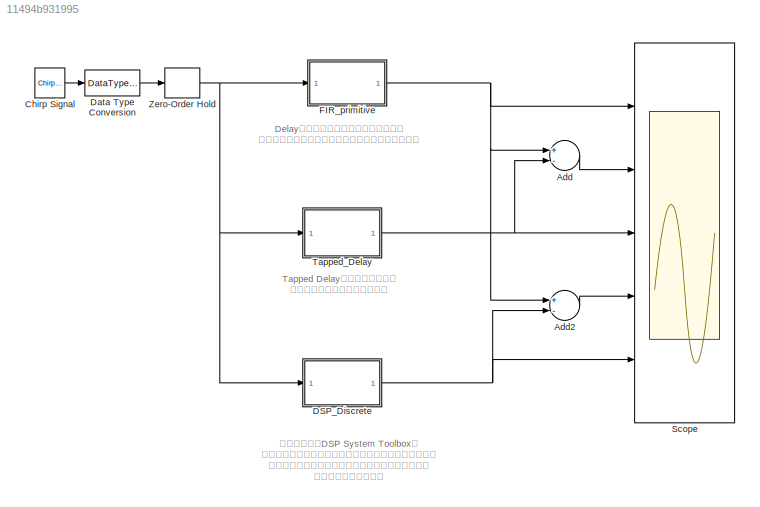
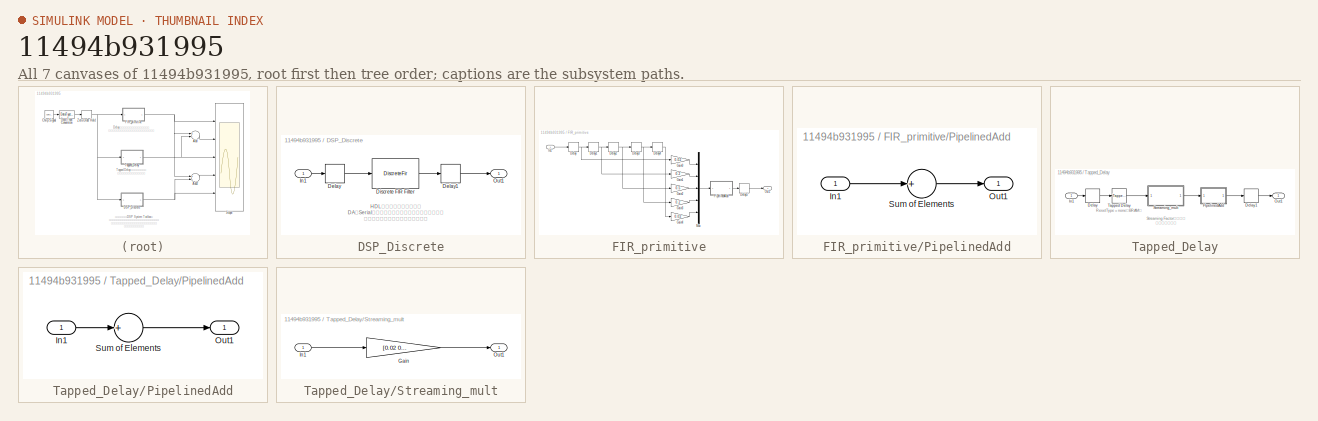
[diagram: thumbnail index - all 7 canvases of the model, root first then tree order]
MODEL slx_11494b931995
KIND model
CONFIG AbsTol = auto
CONFIG FixedStep = auto
CONFIG MaxStep = auto
CONFIG MinStep = auto
CONFIG RelTol = 1e-3
CONFIG SampleTimeConstraint = Unconstrained
CONFIG Solver = FixedStepDiscrete
CONFIG SolverMode = SingleTasking
CONFIG SolverName = FixedStepDiscrete
CONFIG StartTime = 0.0
CONFIG StopTime = 10.0
BLOCK [Sum] Add
  InputSameDT = off
  Inputs = +-
  OutDataTypeStr = Inherit: Inherit via internal rule
  Ports = [2, 1]
  SaturateOnIntegerOverflow = off
BLOCK [Sum] Add2
  InputSameDT = off
  Inputs = +-
  OutDataTypeStr = Inherit: Inherit via internal rule
  Ports = [2, 1]
  SaturateOnIntegerOverflow = off
BLOCK [Reference] Chirp Signal  REF=simulink/Sources/Chirp Signal
  Ports = [0, 1]
  SourceBlock = simulink/Sources/Chirp Signal
  SourceType = chirp
BLOCK [SubSystem] DSP_Discrete
  Ports = [1, 1]
  RequestExecContextInheritance = off
  Variant = off
BLOCK [Delay] DSP_Discrete/Delay
  DelayLength = 1
  InputPortMap = u0
  Ports = [1, 1]
BLOCK [Delay] DSP_Discrete/Delay1
  DelayLength = 1
  InputPortMap = u0
  Ports = [1, 1]
BLOCK [DiscreteFir] DSP_Discrete/Discrete FIR Filter
  AccumDataTypeStr = fixdt(1,19,14)
  Coefficients = [0.02 0.2 0.5 0.2 0.02]  %[0.2 0.3 0.5 0.3 0.2]  %コメント
  FilterStructure = Direct form symmetric
  InputPortMap = u0
  InputProcessing = Columns as channels (frame based)
  OutputPortMap = o0
  Ports = [1, 1]
  ProductDataTypeStr = Inherit: Same as input
  RndMeth = Nearest
BLOCK [Inport] DSP_Discrete/In1
  IconDisplay = Port number
BLOCK [Outport] DSP_Discrete/Out1
  IconDisplay = Port number
BLOCK [DataTypeConversion] Data Type Conversion
  OutDataTypeStr = fixdt(1,16,14)
  RndMeth = Nearest
  SaturateOnIntegerOverflow = off
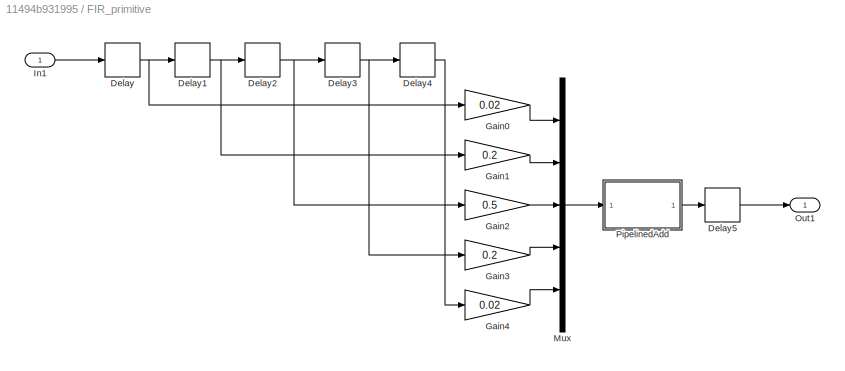
BLOCK [SubSystem] FIR_primitive
  Ports = [1, 1]
  RequestExecContextInheritance = off
  Variant = off
BLOCK [Delay] FIR_primitive/Delay
  DelayLength = 1
  InputPortMap = u0
  Ports = [1, 1]
BLOCK [Delay] FIR_primitive/Delay1
  DelayLength = 1
  InputPortMap = u0
  Ports = [1, 1]
BLOCK [Delay] FIR_primitive/Delay2
  DelayLength = 1
  InputPortMap = u0
  Ports = [1, 1]
BLOCK [Delay] FIR_primitive/Delay3
  DelayLength = 1
  InputPortMap = u0
  Ports = [1, 1]
BLOCK [Delay] FIR_primitive/Delay4
  DelayLength = 1
  InputPortMap = u0
  Ports = [1, 1]
BLOCK [Delay] FIR_primitive/Delay5
  DelayLength = 1
  InputPortMap = u0
  Ports = [1, 1]
BLOCK [Gain] FIR_primitive/Gain0
  Gain = 0.02
  RndMeth = Nearest
  SaturateOnIntegerOverflow = off
BLOCK [Gain] FIR_primitive/Gain1
  Gain = 0.2
  RndMeth = Nearest
  SaturateOnIntegerOverflow = off
BLOCK [Gain] FIR_primitive/Gain2
  Gain = 0.5
  RndMeth = Nearest
  SaturateOnIntegerOverflow = off
BLOCK [Gain] FIR_primitive/Gain3
  Gain = 0.2
  RndMeth = Nearest
  SaturateOnIntegerOverflow = off
BLOCK [Gain] FIR_primitive/Gain4
  Gain = 0.02
  RndMeth = Nearest
  SaturateOnIntegerOverflow = off
BLOCK [Inport] FIR_primitive/In1
  IconDisplay = Port number
BLOCK [Mux] FIR_primitive/Mux
  DisplayOption = bar
  Inputs = 5
  Ports = [5, 1]
BLOCK [Outport] FIR_primitive/Out1
  IconDisplay = Port number
BLOCK [SubSystem] FIR_primitive/PipelinedAdd
  Ports = [1, 1]
  RequestExecContextInheritance = off
  Variant = off
BLOCK [Inport] FIR_primitive/PipelinedAdd/In1
  IconDisplay = Port number
BLOCK [Outport] FIR_primitive/PipelinedAdd/Out1
  IconDisplay = Port number
BLOCK [Sum] FIR_primitive/PipelinedAdd/Sum of Elements
  InputSameDT = off
  Inputs = +
  OutDataTypeStr = Inherit: Inherit via internal rule
  Ports = [1, 1]
  RndMeth = Nearest
  SaturateOnIntegerOverflow = off
BLOCK [Scope] Scope
  NumInputPorts = 5
  Ports = [5]
  ScopeSpecificationString = Simulink.scopes.TimeScopeBlockCfg('CurrentConfiguration', extmgr.ConfigurationSet(extmgr.Configuration('Core','General UI',true),extmgr.Configuration('Core','Source UI',true),extmgr.Configuration('Sources','WiredSimulink',true,'DataLoggingSaveFormat','StructureWithTime','DataLoggingDecimation','1','DataLoggingDecimateData',true),extmgr.Configuration('Visuals','Time Domain',true,'SerializedDisplays...<+6417ch>
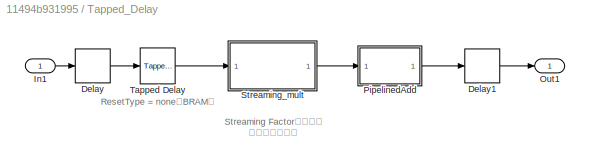
BLOCK [SubSystem] Tapped_Delay
  Ports = [1, 1]
  RequestExecContextInheritance = off
  Variant = off
BLOCK [Delay] Tapped_Delay/Delay
  DelayLength = 1
  InputPortMap = u0
  Ports = [1, 1]
BLOCK [Delay] Tapped_Delay/Delay1
  DelayLength = 1
  InputPortMap = u0
  Ports = [1, 1]
BLOCK [Inport] Tapped_Delay/In1
  IconDisplay = Port number
BLOCK [Outport] Tapped_Delay/Out1
  IconDisplay = Port number
BLOCK [SubSystem] Tapped_Delay/PipelinedAdd
  Ports = [1, 1]
  RequestExecContextInheritance = off
  Variant = off
BLOCK [Inport] Tapped_Delay/PipelinedAdd/In1
  IconDisplay = Port number
BLOCK [Outport] Tapped_Delay/PipelinedAdd/Out1
  IconDisplay = Port number
BLOCK [Sum] Tapped_Delay/PipelinedAdd/Sum of Elements
  InputSameDT = off
  Inputs = +
  OutDataTypeStr = Inherit: Inherit via internal rule
  Ports = [1, 1]
  RndMeth = Nearest
  SaturateOnIntegerOverflow = off
BLOCK [SubSystem] Tapped_Delay/Streaming_mult
  Ports = [1, 1]
  RequestExecContextInheritance = off
  Variant = off
BLOCK [Gain] Tapped_Delay/Streaming_mult/Gain
  Gain = [0.02 0.2 0.5 0.2 0.02]
  RndMeth = Nearest
  SaturateOnIntegerOverflow = off
BLOCK [Inport] Tapped_Delay/Streaming_mult/In1
  IconDisplay = Port number
BLOCK [Outport] Tapped_Delay/Streaming_mult/Out1
  IconDisplay = Port number
BLOCK [Reference] Tapped_Delay/Tapped Delay  REF=simulink/Discrete/Tapped Delay
  Ports = [1, 1]
  SourceBlock = simulink/Discrete/Tapped Delay
  SourceType = Tapped Delay Line
BLOCK [ZeroOrderHold] Zero-Order Hold
  SampleTime = 1/1000
ANNOTATION (root): Delayブロックと乗算、加算器といった プリミティブなブロックを使って構成しています。
ANNOTATION (root): Tapped Delayを使用することで 若干抽象度を高く記述できる。
ANNOTATION (root): 抽象度の高いDSP System Toolboxの フィルタブロックを使用するとモデリングが容易になり 構造の変更（対称、非対称）もパラメータで簡単に 行うことが可能です。
ANNOTATION DSP_Discrete: HDLブロックプロパティで DAやSerial化などのアーキテクチャを選択できる。 必要なパラメータのみ表示される。
ANNOTATION Tapped_Delay: ResetType = noneでBRAM化
ANNOTATION Tapped_Delay: Streaming Factorによって 乗算器を共有化
LINE Add2:1 -> Scope:4
LINE Add:1 -> Scope:2
LINE Chirp Signal:1 -> Data Type Conversion:1
LINE DSP_Discrete/Delay1:1 -> DSP_Discrete/Out1:1
LINE DSP_Discrete/Delay:1 -> DSP_Discrete/Discrete FIR Filter:1
LINE DSP_Discrete/Discrete FIR Filter:1 -> DSP_Discrete/Delay1:1
LINE DSP_Discrete/In1:1 -> DSP_Discrete/Delay:1
NET DSP_Discrete:1 -> Add2:2, Scope:5
LINE Data Type Conversion:1 -> Zero-Order Hold:1
NET FIR_primitive/Delay1:1 -> FIR_primitive/Delay2:1, FIR_primitive/Gain1:1
NET FIR_primitive/Delay2:1 -> FIR_primitive/Delay3:1, FIR_primitive/Gain2:1
NET FIR_primitive/Delay3:1 -> FIR_primitive/Delay4:1, FIR_primitive/Gain3:1
LINE FIR_primitive/Delay4:1 -> FIR_primitive/Gain4:1
LINE FIR_primitive/Delay5:1 -> FIR_primitive/Out1:1
NET FIR_primitive/Delay:1 -> FIR_primitive/Delay1:1, FIR_primitive/Gain0:1
LINE FIR_primitive/Gain0:1 -> FIR_primitive/Mux:1
LINE FIR_primitive/Gain1:1 -> FIR_primitive/Mux:2
LINE FIR_primitive/Gain2:1 -> FIR_primitive/Mux:3
LINE FIR_primitive/Gain3:1 -> FIR_primitive/Mux:4
LINE FIR_primitive/Gain4:1 -> FIR_primitive/Mux:5
LINE FIR_primitive/In1:1 -> FIR_primitive/Delay:1
LINE FIR_primitive/Mux:1 -> FIR_primitive/PipelinedAdd:1
LINE FIR_primitive/PipelinedAdd/In1:1 -> FIR_primitive/PipelinedAdd/Sum of Elements:1
LINE FIR_primitive/PipelinedAdd/Sum of Elements:1 -> FIR_primitive/PipelinedAdd/Out1:1
LINE FIR_primitive/PipelinedAdd:1 -> FIR_primitive/Delay5:1
NET FIR_primitive:1 -> Add2:1, Add:1, Scope:1
LINE Tapped_Delay/Delay1:1 -> Tapped_Delay/Out1:1
LINE Tapped_Delay/Delay:1 -> Tapped_Delay/Tapped Delay:1
LINE Tapped_Delay/In1:1 -> Tapped_Delay/Delay:1
LINE Tapped_Delay/PipelinedAdd/In1:1 -> Tapped_Delay/PipelinedAdd/Sum of Elements:1
LINE Tapped_Delay/PipelinedAdd/Sum of Elements:1 -> Tapped_Delay/PipelinedAdd/Out1:1
LINE Tapped_Delay/PipelinedAdd:1 -> Tapped_Delay/Delay1:1
LINE Tapped_Delay/Streaming_mult/Gain:1 -> Tapped_Delay/Streaming_mult/Out1:1
LINE Tapped_Delay/Streaming_mult/In1:1 -> Tapped_Delay/Streaming_mult/Gain:1
LINE Tapped_Delay/Streaming_mult:1 -> Tapped_Delay/PipelinedAdd:1
LINE Tapped_Delay/Tapped Delay:1 -> Tapped_Delay/Streaming_mult:1
NET Tapped_Delay:1 -> Add:2, Scope:3
NET Zero-Order Hold:1 -> DSP_Discrete:1, FIR_primitive:1, Tapped_Delay:1
note: NET lines group one-source signal fan-out (src -> all destinations, sorted); 1:1 wires keep LINE
